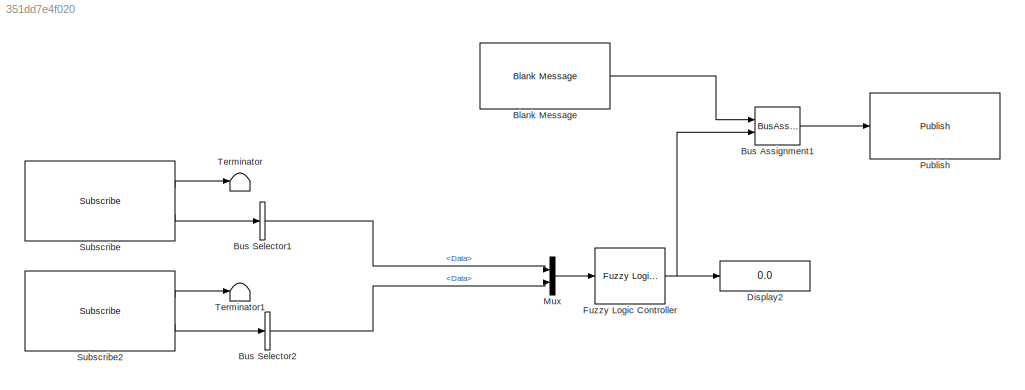
MODEL slx_351dd7e4f020
KIND model
CONFIG AbsTol = auto
CONFIG EnableMultiTasking = off
CONFIG FixedStep = 0.1
CONFIG MaxStep = auto
CONFIG MinStep = auto
CONFIG RelTol = 1e-3
CONFIG SampleTimeConstraint = Unconstrained
CONFIG SolverName = FixedStepAuto
CONFIG StartTime = 0.0
CONFIG StopTime = inf
BLOCK [Reference] Blank Message  REF=robotlib/Blank Message
  Ports = [0, 1]
  SourceBlock = robotlib/Blank Message
  SourceProductBaseCode = RR
  SourceType = ROS Blank Message
BLOCK [BusAssignment] Bus Assignment1
  AssignedSignals = Data
  Ports = [2, 1]
BLOCK [BusSelector] Bus Selector1
  DialogController = Simulink.DDGSource_BusSelector
  OutputSignals = Data
  Ports = [1, 1]
BLOCK [BusSelector] Bus Selector2
  DialogController = Simulink.DDGSource_BusSelector
  OutputSignals = Data
  Ports = [1, 1]
BLOCK [Display] Display2
  Decimation = 1
  Ports = [1]
BLOCK [Reference] Fuzzy Logic Controller  REF=fuzblock/Fuzzy Logic   (lib defined in mdl_858b3b3e7478)
Controller
  Ports = [1, 1]
  SourceBlock = fuzblock/Fuzzy Logic \nController
  SourceProductBaseCode = FL
  SourceType = Fuzzy Inference System
BLOCK [Mux] Mux
  DisplayOption = bar
  Inputs = 2
  Ports = [2, 1]
BLOCK [Reference] Publish  REF=robotlib/Publish
  Ports = [1]
  SourceBlock = robotlib/Publish
  SourceProductBaseCode = RR
  SourceType = ROS Publish
BLOCK [Reference] Subscribe  REF=robotlib/Subscribe
  Ports = [0, 2]
  SourceBlock = robotlib/Subscribe
  SourceProductBaseCode = RR
  SourceType = ROS Subscribe
BLOCK [Reference] Subscribe2  REF=robotlib/Subscribe
  Ports = [0, 2]
  SourceBlock = robotlib/Subscribe
  SourceProductBaseCode = RR
  SourceType = ROS Subscribe
BLOCK [Terminator] Terminator
BLOCK [Terminator] Terminator1
LINE Blank Message:1 -> Bus Assignment1:1
LINE Bus Assignment1:1 -> Publish:1
LINE Bus Selector1:1 -> Mux:1
LINE Bus Selector2:1 -> Mux:2
NET Fuzzy Logic Controller:1 -> Bus Assignment1:2, Display2:1
LINE Mux:1 -> Fuzzy Logic Controller:1
LINE Subscribe2:1 -> Terminator1:1
LINE Subscribe2:2 -> Bus Selector2:1
LINE Subscribe:1 -> Terminator:1
LINE Subscribe:2 -> Bus Selector1:1
note: NET lines group one-source signal fan-out (src -> all destinations, sorted); 1:1 wires keep LINE
